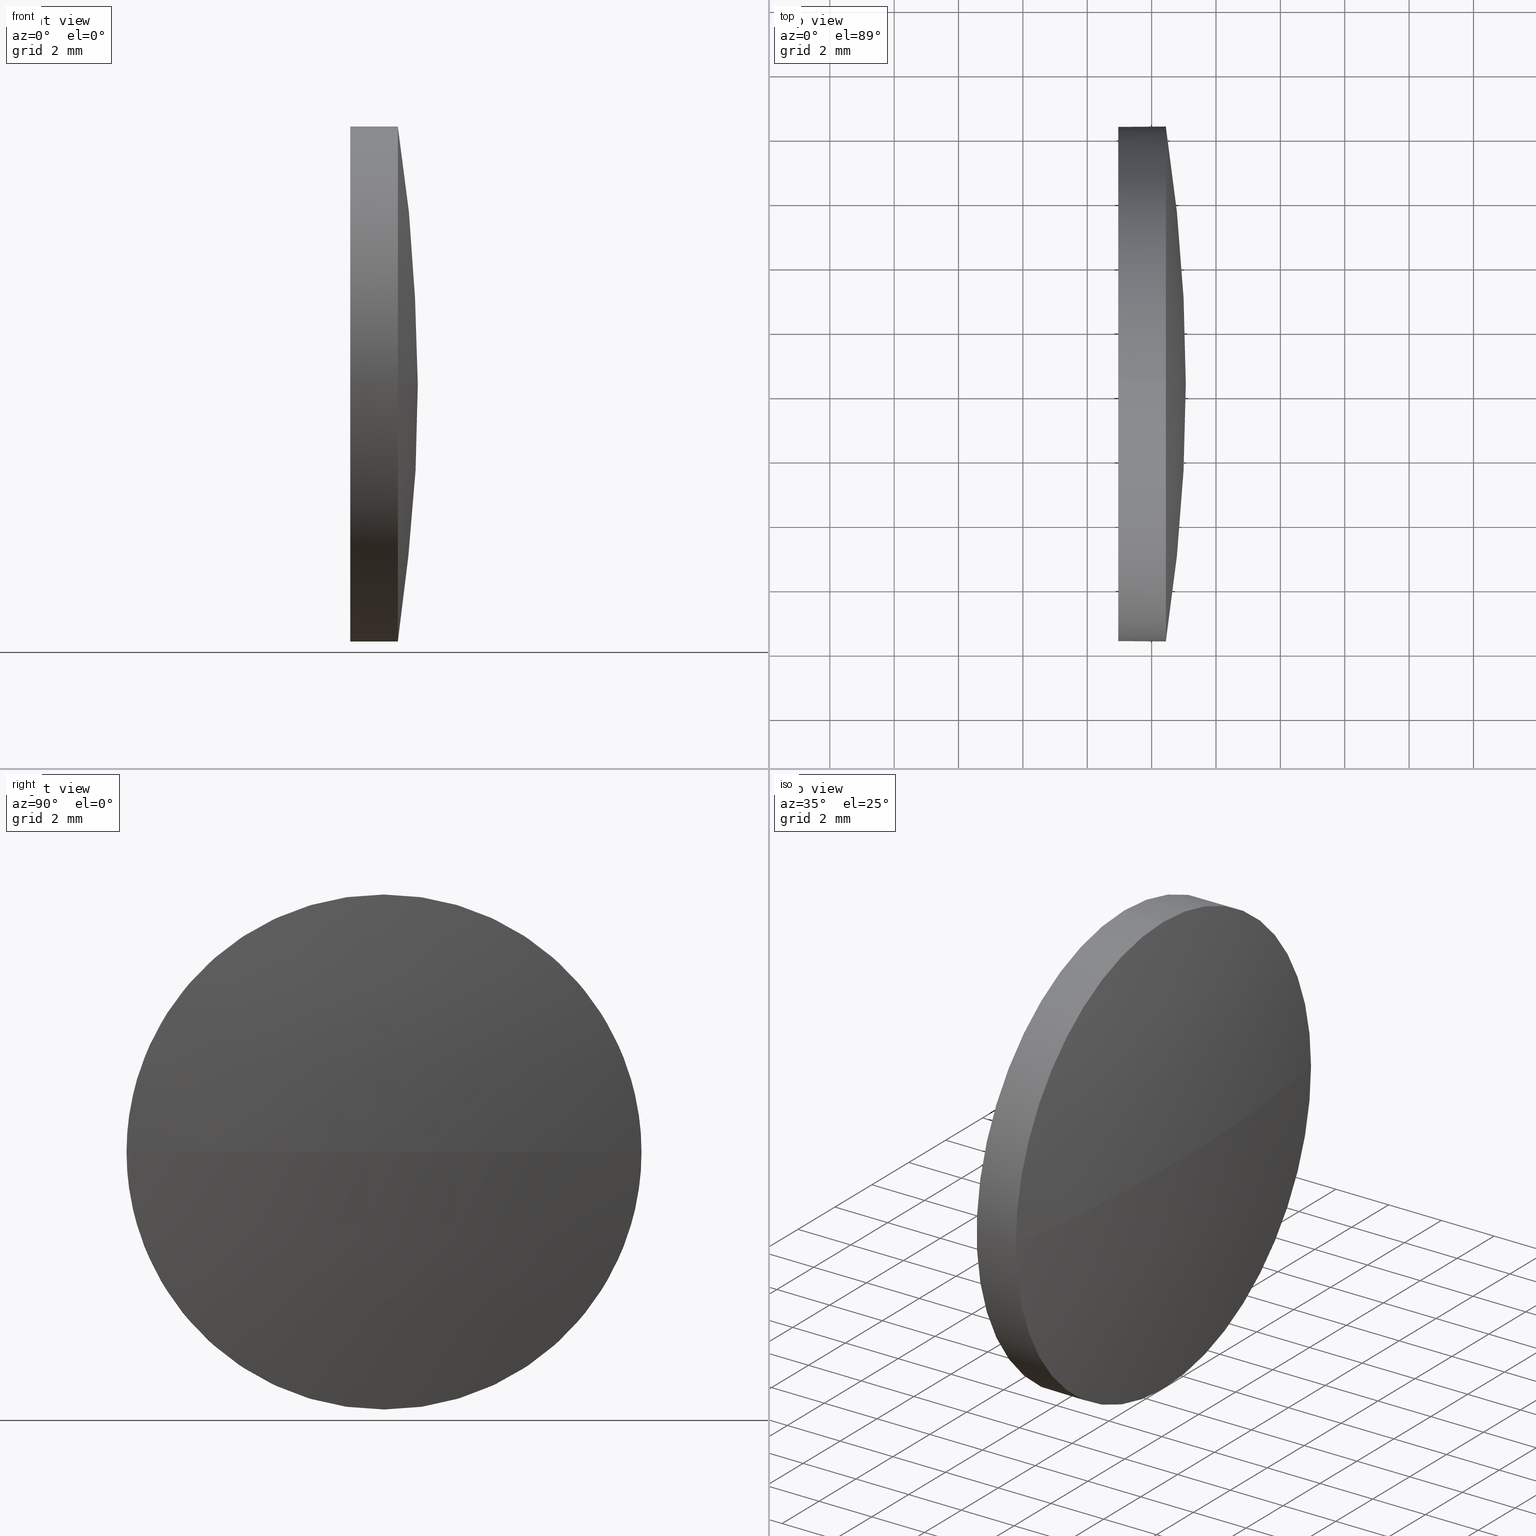
[diagram: canonical four-view strip — front | top / right | iso, engineering-drawing reading convention]
A machine part, canonical four-view strip (front | top / right | iso — engineering-drawing reading convention). The complete STEP part file that produces these views, byte-faithful:
ISO-10303-21;
HEADER;
FILE_DESCRIPTION (( 'STEP AP214' ),
    '1' );
FILE_NAME ('100032.STEP',
    '2019-04-22T09:05:54',
    ( '' ),
    ( '' ),
    'SwSTEP 2.0',
    'SolidWorks 2016',
    '' );
FILE_SCHEMA (( 'AUTOMOTIVE_DESIGN' ));
ENDSEC;

DATA;
#1 = FILL_AREA_STYLE_COLOUR ( '', #144 ) ;
#2 = VERTEX_POINT ( 'NONE', #34 ) ;
#3 = ORIENTED_EDGE ( 'NONE', *, *, #166, .T. ) ;
#4 = PRODUCT_DEFINITION_SHAPE ( 'NONE', 'NONE',  #21 ) ;
#5 = FACE_OUTER_BOUND ( 'NONE', #177, .T. ) ;
#6 = ORIENTED_EDGE ( 'NONE', *, *, #84, .F. ) ;
#7 = CARTESIAN_POINT ( 'NONE',  ( 432.4406144049648900, 100.3116985881700900, -8.000000000000007100 ) ) ;
#8 = LINE ( 'NONE', #59, #132 ) ;
#9 =( GEOMETRIC_REPRESENTATION_CONTEXT ( 3 ) GLOBAL_UNCERTAINTY_ASSIGNED_CONTEXT ( ( #106 ) ) GLOBAL_UNIT_ASSIGNED_CONTEXT ( ( #151, #25, #180 ) ) REPRESENTATION_CONTEXT ( 'NONE', 'WORKASPACE' ) );
#10 = SURFACE_STYLE_FILL_AREA ( #153 ) ;
#11 = SPHERICAL_SURFACE ( 'NONE', #176, 51.92290322580650000 ) ;
#12 = DIRECTION ( 'NONE',  ( -1.000000000000000000, -0.0000000000000000000, -0.0000000000000000000 ) ) ;
#13 =( NAMED_UNIT ( * ) PLANE_ANGLE_UNIT ( ) SI_UNIT ( $, .RADIAN. ) );
#14 =( NAMED_UNIT ( * ) PLANE_ANGLE_UNIT ( ) SI_UNIT ( $, .RADIAN. ) );
#15 = APPLICATION_CONTEXT ( 'automotive_design' ) ;
#16 = ADVANCED_FACE ( 'NONE', ( #103 ), #91, .F. ) ;
#17 = AXIS2_PLACEMENT_3D ( 'NONE', #73, #40, #101 ) ;
#18 = FACE_OUTER_BOUND ( 'NONE', #89, .T. ) ;
#19 = VERTEX_POINT ( 'NONE', #7 ) ;
#20 = PRODUCT_DEFINITION_CONTEXT ( 'detailed design', #15, 'design' ) ;
#21 = PRODUCT_DEFINITION ( 'δ֪', '', #52, #20 ) ;
#22 = DIRECTION ( 'NONE',  ( -1.000000000000000000, -0.0000000000000000000, -0.0000000000000000000 ) ) ;
#23 = ORIENTED_EDGE ( 'NONE', *, *, #95, .T. ) ;
#24 = EDGE_CURVE ( 'NONE', #127, #68, #168, .T. ) ;
#25 =( NAMED_UNIT ( * ) PLANE_ANGLE_UNIT ( ) SI_UNIT ( $, .RADIAN. ) );
#26 = ORIENTED_EDGE ( 'NONE', *, *, #39, .F. ) ;
#27 = AXIS2_PLACEMENT_3D ( 'NONE', #143, #12, #28 ) ;
#28 = DIRECTION ( 'NONE',  ( 0.0000000000000000000, 0.0000000000000000000, 1.000000000000000000 ) ) ;
#29 = ORIENTED_EDGE ( 'NONE', *, *, #166, .F. ) ;
#30 = DIRECTION ( 'NONE',  ( 0.0000000000000000000, -1.000000000000000000, 0.0000000000000000000 ) ) ;
#31 = DIRECTION ( 'NONE',  ( -1.000000000000000000, -0.0000000000000000000, -0.0000000000000000000 ) ) ;
#32 = EDGE_CURVE ( 'NONE', #2, #154, #134, .T. ) ;
#33 = EDGE_LOOP ( 'NONE', ( #79, #145, #23, #123, #86 ) ) ;
#34 = CARTESIAN_POINT ( 'NONE',  ( 432.4406144049648900, 100.3116985881700900, 8.000000000000007100 ) ) ;
#35 = CARTESIAN_POINT ( 'NONE',  ( 430.9606144049649300, 100.3116985881700900, 0.0000000000000000000 ) ) ;
#36 = VECTOR ( 'NONE', #85, 1000.000000000000000 ) ;
#37 = AXIS2_PLACEMENT_3D ( 'NONE', #137, #75, #58 ) ;
#38 = DIRECTION ( 'NONE',  ( 0.0000000000000000000, 0.0000000000000000000, -1.000000000000000000 ) ) ;
#39 = EDGE_CURVE ( 'NONE', #19, #117, #157, .T. ) ;
#40 = DIRECTION ( 'NONE',  ( 0.0000000000000000000, 0.0000000000000000000, -1.000000000000000000 ) ) ;
#41 = CARTESIAN_POINT ( 'NONE',  ( 430.9606144049649300, 100.3116985881700900, -8.000000000000007100 ) ) ;
#42 = CARTESIAN_POINT ( 'NONE',  ( 427.2353457846026000, 100.3116985881700900, 8.000000000000007100 ) ) ;
#43 =( LENGTH_UNIT ( ) NAMED_UNIT ( * ) SI_UNIT ( .MILLI., .METRE. ) );
#44 = AXIS2_PLACEMENT_3D ( 'NONE', #98, #156, #171 ) ;
#45 = DIRECTION ( 'NONE',  ( 0.0000000000000000000, -1.000000000000000000, -1.224646799147353200E-016 ) ) ;
#46 = ORIENTED_EDGE ( 'NONE', *, *, #95, .F. ) ;
#47 = APPLICATION_PROTOCOL_DEFINITION ( 'draft international standard', 'automotive_design', 1998, #15 ) ;
#48 = DIRECTION ( 'NONE',  ( 1.000000000000000000, 0.0000000000000000000, 0.0000000000000000000 ) ) ;
#49 = ADVANCED_FACE ( 'NONE', ( #96 ), #60, .T. ) ;
#50 = CIRCLE ( 'NONE', #147, 8.000000000000007100 ) ;
#51 = ORIENTED_EDGE ( 'NONE', *, *, #84, .T. ) ;
#52 = PRODUCT_DEFINITION_FORMATION_WITH_SPECIFIED_SOURCE ( '�κ�', '', #148, .NOT_KNOWN. ) ;
#53 = SPHERICAL_SURFACE ( 'NONE', #37, 51.92290322580650000 ) ;
#54 = DIRECTION ( 'NONE',  ( 0.0000000000000000000, 0.0000000000000000000, 1.000000000000000000 ) ) ;
#55 = MANIFOLD_SOLID_BREP ( '��ת1', #56 ) ;
#56 = CLOSED_SHELL ( 'NONE', ( #112, #146, #172, #49, #16 ) ) ;
#57 = AXIS2_PLACEMENT_3D ( 'NONE', #61, #158, #45 ) ;
#58 = DIRECTION ( 'NONE',  ( 0.0000000000000000000, -1.000000000000000000, 0.0000000000000000000 ) ) ;
#59 = CARTESIAN_POINT ( 'NONE',  ( 427.2353457846026000, 100.3116985881700900, -8.000000000000007100 ) ) ;
#60 = CYLINDRICAL_SURFACE ( 'NONE', #131, 8.000000000000007100 ) ;
#61 = CARTESIAN_POINT ( 'NONE',  ( 381.1377111791583700, 100.3116985881701200, 0.0000000000000000000 ) ) ;
#62 = EDGE_LOOP ( 'NONE', ( #99, #51, #26, #29 ) ) ;
#63 = PRODUCT_RELATED_PRODUCT_CATEGORY ( 'part', '', ( #148 ) ) ;
#64 = SHAPE_DEFINITION_REPRESENTATION ( #4, #83 ) ;
#65 = SURFACE_STYLE_FILL_AREA ( #70 ) ;
#66 =( GEOMETRIC_REPRESENTATION_CONTEXT ( 3 ) GLOBAL_UNCERTAINTY_ASSIGNED_CONTEXT ( ( #133 ) ) GLOBAL_UNIT_ASSIGNED_CONTEXT ( ( #43, #13, #82 ) ) REPRESENTATION_CONTEXT ( 'NONE', 'WORKASPACE' ) );
#67 = DIRECTION ( 'NONE',  ( 1.000000000000000000, 0.0000000000000000000, 0.0000000000000000000 ) ) ;
#68 = VERTEX_POINT ( 'NONE', #173 ) ;
#69 = DIRECTION ( 'NONE',  ( -1.000000000000000000, -0.0000000000000000000, -0.0000000000000000000 ) ) ;
#70 = FILL_AREA_STYLE ('',( #167 ) ) ;
#71 = CARTESIAN_POINT ( 'NONE',  ( 427.2353457846026000, 100.3116985881700900, 0.0000000000000000000 ) ) ;
#72 = DIRECTION ( 'NONE',  ( -1.000000000000000000, -0.0000000000000000000, -0.0000000000000000000 ) ) ;
#73 = CARTESIAN_POINT ( 'NONE',  ( 381.1377111791583700, 100.3116985881701200, 0.0000000000000000000 ) ) ;
#74 = STYLED_ITEM ( 'NONE', ( #119 ), #83 ) ;
#75 = DIRECTION ( 'NONE',  ( 0.0000000000000000000, 0.0000000000000000000, 1.000000000000000000 ) ) ;
#76 = ORIENTED_EDGE ( 'NONE', *, *, #32, .T. ) ;
#77 = LINE ( 'NONE', #42, #36 ) ;
#78 = AXIS2_PLACEMENT_3D ( 'NONE', #149, #69, #163 ) ;
#79 = ORIENTED_EDGE ( 'NONE', *, *, #155, .F. ) ;
#80 = EDGE_LOOP ( 'NONE', ( #108, #94 ) ) ;
#81 = CARTESIAN_POINT ( 'NONE',  ( 432.4406144049648900, 100.3116985881700900, 0.0000000000000000000 ) ) ;
#82 =( NAMED_UNIT ( * ) SI_UNIT ( $, .STERADIAN. ) SOLID_ANGLE_UNIT ( ) );
#83 = ADVANCED_BREP_SHAPE_REPRESENTATION ( '100032', ( #55, #159 ), #66 ) ;
#84 = EDGE_CURVE ( 'NONE', #102, #117, #93, .T. ) ;
#85 = DIRECTION ( 'NONE',  ( -1.000000000000000000, -0.0000000000000000000, -0.0000000000000000000 ) ) ;
#86 = ORIENTED_EDGE ( 'NONE', *, *, #24, .F. ) ;
#87 = AXIS2_PLACEMENT_3D ( 'NONE', #179, #22, #162 ) ;
#88 = CIRCLE ( 'NONE', #57, 51.92290322580650000 ) ;
#89 = EDGE_LOOP ( 'NONE', ( #3, #174, #150, #165, #76 ) ) ;
#90 = MECHANICAL_DESIGN_GEOMETRIC_PRESENTATION_REPRESENTATION (  '', ( #74 ), #128 ) ;
#91 = PLANE ( 'NONE',  #182 ) ;
#92 = PRESENTATION_LAYER_ASSIGNMENT (  '', '', ( #141 ) ) ;
#93 = CIRCLE ( 'NONE', #17, 51.92290322580650800 ) ;
#94 = ORIENTED_EDGE ( 'NONE', *, *, #24, .T. ) ;
#95 = EDGE_CURVE ( 'NONE', #117, #2, #152, .T. ) ;
#96 = FACE_OUTER_BOUND ( 'NONE', #33, .T. ) ;
#97 =( LENGTH_UNIT ( ) NAMED_UNIT ( * ) SI_UNIT ( .MILLI., .METRE. ) );
#98 = CARTESIAN_POINT ( 'NONE',  ( 432.4406144049648900, 100.3116985881700900, 0.0000000000000000000 ) ) ;
#99 = ORIENTED_EDGE ( 'NONE', *, *, #116, .F. ) ;
#100 = CARTESIAN_POINT ( 'NONE',  ( 433.0606144049648900, 100.3116985881701200, 0.0000000000000000000 ) ) ;
#101 = DIRECTION ( 'NONE',  ( -1.000000000000000000, 0.0000000000000000000, 0.0000000000000000000 ) ) ;
#102 = VERTEX_POINT ( 'NONE', #100 ) ;
#103 = FACE_OUTER_BOUND ( 'NONE', #80, .T. ) ;
#104 = DIRECTION ( 'NONE',  ( -1.000000000000000000, -0.0000000000000000000, -0.0000000000000000000 ) ) ;
#105 = CARTESIAN_POINT ( 'NONE',  ( 430.9606144049649300, 100.3116985881700900, 0.0000000000000000000 ) ) ;
#106 = UNCERTAINTY_MEASURE_WITH_UNIT (LENGTH_MEASURE( 1.000000000000000100E-005 ), #151, 'distance_accuracy_value', 'NONE');
#107 = DIRECTION ( 'NONE',  ( 0.0000000000000000000, 0.0000000000000000000, 1.000000000000000000 ) ) ;
#108 = ORIENTED_EDGE ( 'NONE', *, *, #122, .T. ) ;
#109 = AXIS2_PLACEMENT_3D ( 'NONE', #35, #104, #121 ) ;
#110 = CARTESIAN_POINT ( 'NONE',  ( 432.4406144049648900, 108.3116985881701000, 9.797174393178815800E-016 ) ) ;
#111 = CARTESIAN_POINT ( 'NONE',  ( 432.4406144049648900, 92.31169858817008800, 0.0000000000000000000 ) ) ;
#112 = ADVANCED_FACE ( 'NONE', ( #18 ), #125, .T. ) ;
#113 = UNCERTAINTY_MEASURE_WITH_UNIT (LENGTH_MEASURE( 1.000000000000000100E-005 ), #97, 'distance_accuracy_value', 'NONE');
#114 =( NAMED_UNIT ( * ) SI_UNIT ( $, .STERADIAN. ) SOLID_ANGLE_UNIT ( ) );
#115 = DIRECTION ( 'NONE',  ( 0.0000000000000000000, 0.0000000000000000000, 1.000000000000000000 ) ) ;
#116 = EDGE_CURVE ( 'NONE', #102, #154, #88, .T. ) ;
#117 = VERTEX_POINT ( 'NONE', #111 ) ;
#118 = AXIS2_PLACEMENT_3D ( 'NONE', #71, #138, #107 ) ;
#119 = PRESENTATION_STYLE_ASSIGNMENT (( #185 ) ) ;
#120 = PRESENTATION_STYLE_ASSIGNMENT (( #164 ) ) ;
#121 = DIRECTION ( 'NONE',  ( 0.0000000000000000000, 0.0000000000000000000, 1.000000000000000000 ) ) ;
#122 = EDGE_CURVE ( 'NONE', #68, #127, #139, .T. ) ;
#123 = ORIENTED_EDGE ( 'NONE', *, *, #175, .T. ) ;
#124 = PRESENTATION_LAYER_ASSIGNMENT (  '', '', ( #74 ) ) ;
#125 = CYLINDRICAL_SURFACE ( 'NONE', #118, 8.000000000000007100 ) ;
#126 = CARTESIAN_POINT ( 'NONE',  ( 0.0000000000000000000, 0.0000000000000000000, 0.0000000000000000000 ) ) ;
#127 = VERTEX_POINT ( 'NONE', #41 ) ;
#128 =( GEOMETRIC_REPRESENTATION_CONTEXT ( 3 ) GLOBAL_UNCERTAINTY_ASSIGNED_CONTEXT ( ( #113 ) ) GLOBAL_UNIT_ASSIGNED_CONTEXT ( ( #97, #14, #114 ) ) REPRESENTATION_CONTEXT ( 'NONE', 'WORKASPACE' ) );
#129 = PRODUCT_CONTEXT ( 'NONE', #184, 'mechanical' ) ;
#130 = COLOUR_RGB ( '',1.000000000000000000, 1.000000000000000000, 1.000000000000000000 ) ;
#131 = AXIS2_PLACEMENT_3D ( 'NONE', #135, #161, #54 ) ;
#132 = VECTOR ( 'NONE', #31, 1000.000000000000000 ) ;
#133 = UNCERTAINTY_MEASURE_WITH_UNIT (LENGTH_MEASURE( 1.000000000000000100E-005 ), #43, 'distance_accuracy_value', 'NONE');
#134 = CIRCLE ( 'NONE', #87, 8.000000000000007100 ) ;
#135 = CARTESIAN_POINT ( 'NONE',  ( 427.2353457846026000, 100.3116985881700900, 0.0000000000000000000 ) ) ;
#136 = ORIENTED_EDGE ( 'NONE', *, *, #116, .T. ) ;
#137 = CARTESIAN_POINT ( 'NONE',  ( 381.1377111791583700, 100.3116985881701200, 0.0000000000000000000 ) ) ;
#138 = DIRECTION ( 'NONE',  ( -1.000000000000000000, -0.0000000000000000000, -0.0000000000000000000 ) ) ;
#139 = CIRCLE ( 'NONE', #27, 8.000000000000007100 ) ;
#140 = DIRECTION ( 'NONE',  ( 0.0000000000000000000, 0.0000000000000000000, 1.000000000000000000 ) ) ;
#141 = STYLED_ITEM ( 'NONE', ( #120 ), #55 ) ;
#142 = APPLICATION_PROTOCOL_DEFINITION ( 'draft international standard', 'automotive_design', 1998, #184 ) ;
#143 = CARTESIAN_POINT ( 'NONE',  ( 430.9606144049649300, 100.3116985881700900, 0.0000000000000000000 ) ) ;
#144 = COLOUR_RGB ( '',1.000000000000000000, 1.000000000000000000, 1.000000000000000000 ) ;
#145 = ORIENTED_EDGE ( 'NONE', *, *, #39, .T. ) ;
#146 = ADVANCED_FACE ( 'NONE', ( #5 ), #53, .T. ) ;
#147 = AXIS2_PLACEMENT_3D ( 'NONE', #81, #72, #186 ) ;
#148 = PRODUCT ( '100032', '100032', '', ( #129 ) ) ;
#149 = CARTESIAN_POINT ( 'NONE',  ( 432.4406144049648900, 100.3116985881700900, 0.0000000000000000000 ) ) ;
#150 = ORIENTED_EDGE ( 'NONE', *, *, #122, .F. ) ;
#151 =( LENGTH_UNIT ( ) NAMED_UNIT ( * ) SI_UNIT ( .MILLI., .METRE. ) );
#152 = CIRCLE ( 'NONE', #44, 8.000000000000007100 ) ;
#153 = FILL_AREA_STYLE ('',( #1 ) ) ;
#154 = VERTEX_POINT ( 'NONE', #110 ) ;
#155 = EDGE_CURVE ( 'NONE', #19, #127, #8, .T. ) ;
#156 = DIRECTION ( 'NONE',  ( -1.000000000000000000, -0.0000000000000000000, -0.0000000000000000000 ) ) ;
#157 = CIRCLE ( 'NONE', #78, 8.000000000000007100 ) ;
#158 = DIRECTION ( 'NONE',  ( 0.0000000000000000000, -1.224646799147353200E-016, 1.000000000000000000 ) ) ;
#159 = AXIS2_PLACEMENT_3D ( 'NONE', #126, #115, #48 ) ;
#160 = MECHANICAL_DESIGN_GEOMETRIC_PRESENTATION_REPRESENTATION (  '', ( #141 ), #9 ) ;
#161 = DIRECTION ( 'NONE',  ( -1.000000000000000000, -0.0000000000000000000, -0.0000000000000000000 ) ) ;
#162 = DIRECTION ( 'NONE',  ( 0.0000000000000000000, 0.0000000000000000000, 1.000000000000000000 ) ) ;
#163 = DIRECTION ( 'NONE',  ( 0.0000000000000000000, 0.0000000000000000000, 1.000000000000000000 ) ) ;
#164 = SURFACE_STYLE_USAGE ( .BOTH. , #169 ) ;
#165 = ORIENTED_EDGE ( 'NONE', *, *, #175, .F. ) ;
#166 = EDGE_CURVE ( 'NONE', #154, #19, #50, .T. ) ;
#167 = FILL_AREA_STYLE_COLOUR ( '', #130 ) ;
#168 = CIRCLE ( 'NONE', #109, 8.000000000000007100 ) ;
#169 = SURFACE_SIDE_STYLE ('',( #65 ) ) ;
#170 = CARTESIAN_POINT ( 'NONE',  ( 381.1377111791583700, 100.3116985881701200, 0.0000000000000000000 ) ) ;
#171 = DIRECTION ( 'NONE',  ( 0.0000000000000000000, 0.0000000000000000000, 1.000000000000000000 ) ) ;
#172 = ADVANCED_FACE ( 'NONE', ( #183 ), #11, .T. ) ;
#173 = CARTESIAN_POINT ( 'NONE',  ( 430.9606144049649300, 100.3116985881700900, 8.000000000000007100 ) ) ;
#174 = ORIENTED_EDGE ( 'NONE', *, *, #155, .T. ) ;
#175 = EDGE_CURVE ( 'NONE', #2, #68, #77, .T. ) ;
#176 = AXIS2_PLACEMENT_3D ( 'NONE', #170, #140, #30 ) ;
#177 = EDGE_LOOP ( 'NONE', ( #6, #136, #178, #46 ) ) ;
#178 = ORIENTED_EDGE ( 'NONE', *, *, #32, .F. ) ;
#179 = CARTESIAN_POINT ( 'NONE',  ( 432.4406144049648900, 100.3116985881700900, 0.0000000000000000000 ) ) ;
#180 =( NAMED_UNIT ( * ) SI_UNIT ( $, .STERADIAN. ) SOLID_ANGLE_UNIT ( ) );
#181 = SURFACE_SIDE_STYLE ('',( #10 ) ) ;
#182 = AXIS2_PLACEMENT_3D ( 'NONE', #105, #67, #38 ) ;
#183 = FACE_OUTER_BOUND ( 'NONE', #62, .T. ) ;
#184 = APPLICATION_CONTEXT ( 'automotive_design' ) ;
#185 = SURFACE_STYLE_USAGE ( .BOTH. , #181 ) ;
#186 = DIRECTION ( 'NONE',  ( 0.0000000000000000000, 0.0000000000000000000, 1.000000000000000000 ) ) ;
ENDSEC;
END-ISO-10303-21;
